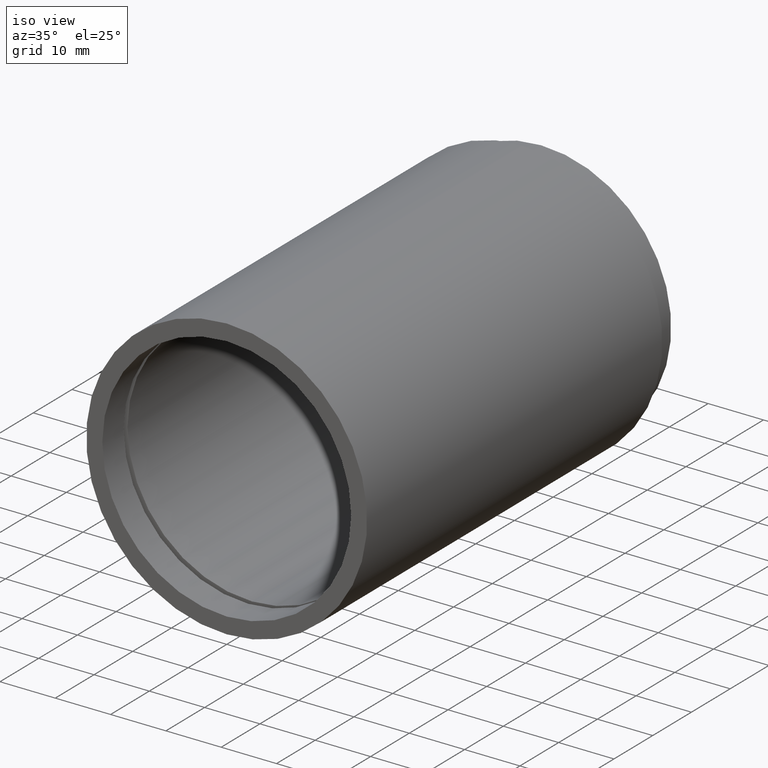
[diagram: clean part render]
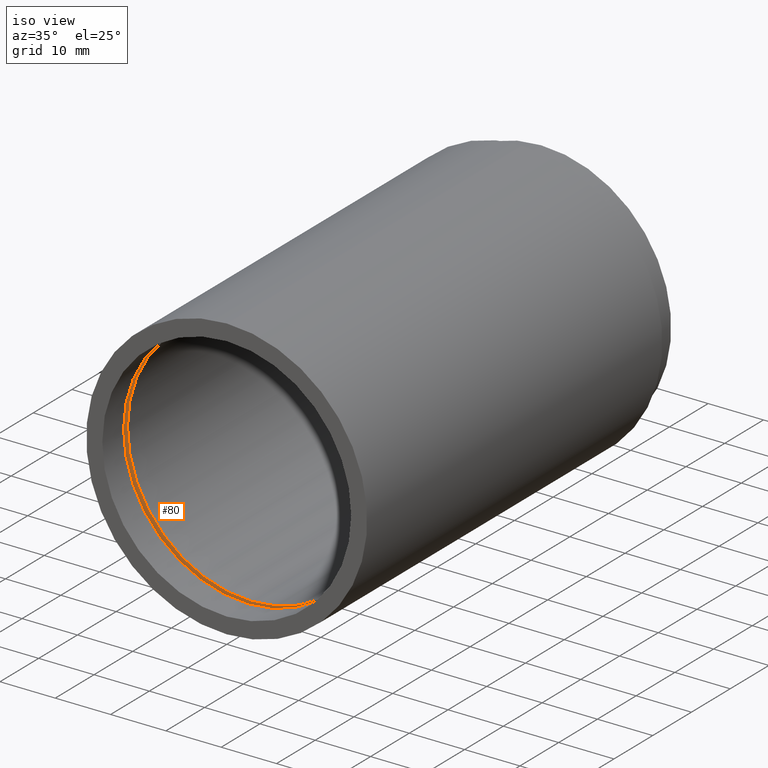
[diagram: same view with one face highlighted and labeled with its STEP entity id]
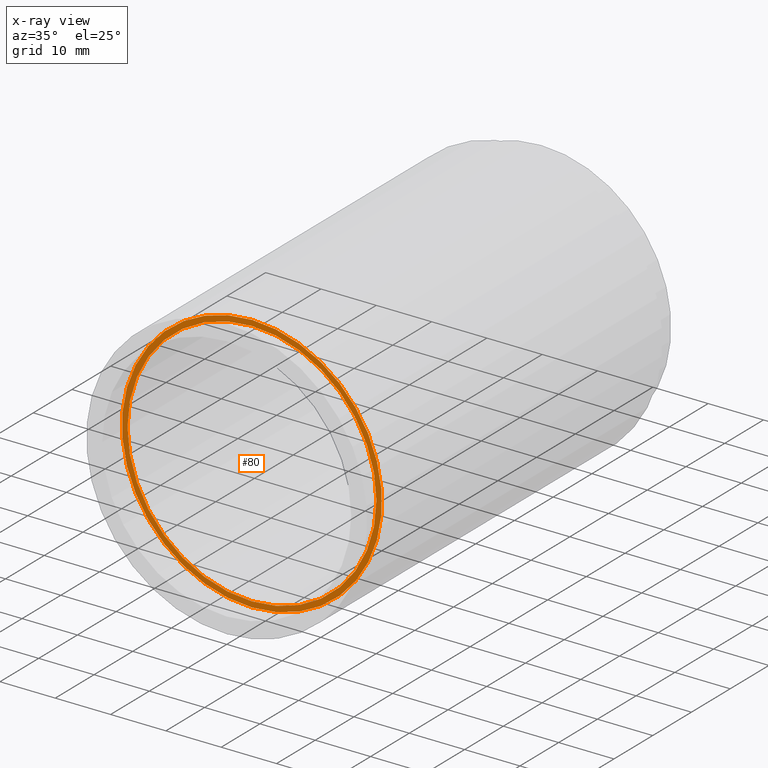
[diagram: x-ray of the same camera — body ghosted, the highlighted face saturated]
A machine part, iso view. The second image highlights one B-rep face of the part: STEP entity #80.
The next image is the same camera in x-ray: the body ghosted, the highlighted face saturated — about 0% of this face is hidden behind the body in this view.
In plain terms, the highlighted planar face has unit normal (-0, 1, 0).
Its self-contained STEP definition (entity closure, byte-faithful):
#13 = EDGE_CURVE ( 'NONE', #609, #79, #711, .T. ) ;
#21 = CARTESIAN_POINT ( 'NONE',  ( 0.0000000000000000000, 6.499999999999977800, 0.0000000000000000000 ) ) ;
#51 = AXIS2_PLACEMENT_3D ( 'NONE', #69, #74, #446 ) ;
#61 = DIRECTION ( 'NONE',  ( 0.0000000000000000000, 0.0000000000000000000, 1.000000000000000000 ) ) ;
#69 = CARTESIAN_POINT ( 'NONE',  ( 0.0000000000000000000, 6.499999999999977800, 0.0000000000000000000 ) ) ;
#70 = EDGE_CURVE ( 'NONE', #232, #357, #657, .T. ) ;
#74 = DIRECTION ( 'NONE',  ( -0.0000000000000000000, 1.000000000000000000, -0.0000000000000000000 ) ) ;
#79 = VERTEX_POINT ( 'NONE', #617 ) ;
#80 = ADVANCED_FACE ( 'NONE', ( #490, #619 ), #202, .F. ) ;
#131 = CARTESIAN_POINT ( 'NONE',  ( 0.0000000000000000000, 6.499999999999977800, 0.0000000000000000000 ) ) ;
#140 = AXIS2_PLACEMENT_3D ( 'NONE', #787, #796, #723 ) ;
#141 = ORIENTED_EDGE ( 'NONE', *, *, #13, .F. ) ;
#177 = CARTESIAN_POINT ( 'NONE',  ( 2.755455298081547100E-015, 6.499999999999977800, -22.50000000000002100 ) ) ;
#195 = EDGE_LOOP ( 'NONE', ( #276, #544 ) ) ;
#202 = PLANE ( 'NONE',  #355 ) ;
#209 = AXIS2_PLACEMENT_3D ( 'NONE', #131, #375, #61 ) ;
#232 = VERTEX_POINT ( 'NONE', #527 ) ;
#276 = ORIENTED_EDGE ( 'NONE', *, *, #70, .T. ) ;
#325 = CARTESIAN_POINT ( 'NONE',  ( 0.0000000000000000000, 6.499999999999977800, 23.49999999999986500 ) ) ;
#327 = DIRECTION ( 'NONE',  ( 0.0000000000000000000, 0.0000000000000000000, 1.000000000000000000 ) ) ;
#328 = AXIS2_PLACEMENT_3D ( 'NONE', #21, #704, #338 ) ;
#338 = DIRECTION ( 'NONE',  ( 0.0000000000000000000, 0.0000000000000000000, 1.000000000000000000 ) ) ;
#355 = AXIS2_PLACEMENT_3D ( 'NONE', #641, #444, #327 ) ;
#357 = VERTEX_POINT ( 'NONE', #177 ) ;
#375 = DIRECTION ( 'NONE',  ( -0.0000000000000000000, 1.000000000000000000, -0.0000000000000000000 ) ) ;
#407 = EDGE_CURVE ( 'NONE', #79, #609, #588, .T. ) ;
#444 = DIRECTION ( 'NONE',  ( -0.0000000000000000000, 1.000000000000000000, 0.0000000000000000000 ) ) ;
#446 = DIRECTION ( 'NONE',  ( 0.0000000000000000000, 0.0000000000000000000, 1.000000000000000000 ) ) ;
#448 = ORIENTED_EDGE ( 'NONE', *, *, #407, .F. ) ;
#490 = FACE_OUTER_BOUND ( 'NONE', #740, .T. ) ;
#527 = CARTESIAN_POINT ( 'NONE',  ( 0.0000000000000000000, 6.499999999999977800, 22.50000000000002100 ) ) ;
#535 = EDGE_CURVE ( 'NONE', #357, #232, #543, .T. ) ;
#543 = CIRCLE ( 'NONE', #51, 22.50000000000002100 ) ;
#544 = ORIENTED_EDGE ( 'NONE', *, *, #535, .T. ) ;
#588 = CIRCLE ( 'NONE', #140, 23.49999999999986500 ) ;
#609 = VERTEX_POINT ( 'NONE', #325 ) ;
#617 = CARTESIAN_POINT ( 'NONE',  ( 2.877919977996263800E-015, 6.499999999999977800, -23.49999999999986500 ) ) ;
#619 = FACE_BOUND ( 'NONE', #195, .T. ) ;
#641 = CARTESIAN_POINT ( 'NONE',  ( 23.49999999999986500, 6.499999999999985800, 0.0000000000000000000 ) ) ;
#657 = CIRCLE ( 'NONE', #328, 22.50000000000002100 ) ;
#704 = DIRECTION ( 'NONE',  ( -0.0000000000000000000, 1.000000000000000000, -0.0000000000000000000 ) ) ;
#711 = CIRCLE ( 'NONE', #209, 23.49999999999986500 ) ;
#723 = DIRECTION ( 'NONE',  ( 0.0000000000000000000, 0.0000000000000000000, 1.000000000000000000 ) ) ;
#740 = EDGE_LOOP ( 'NONE', ( #141, #448 ) ) ;
#787 = CARTESIAN_POINT ( 'NONE',  ( 0.0000000000000000000, 6.499999999999977800, 0.0000000000000000000 ) ) ;
#796 = DIRECTION ( 'NONE',  ( -0.0000000000000000000, 1.000000000000000000, -0.0000000000000000000 ) ) ;